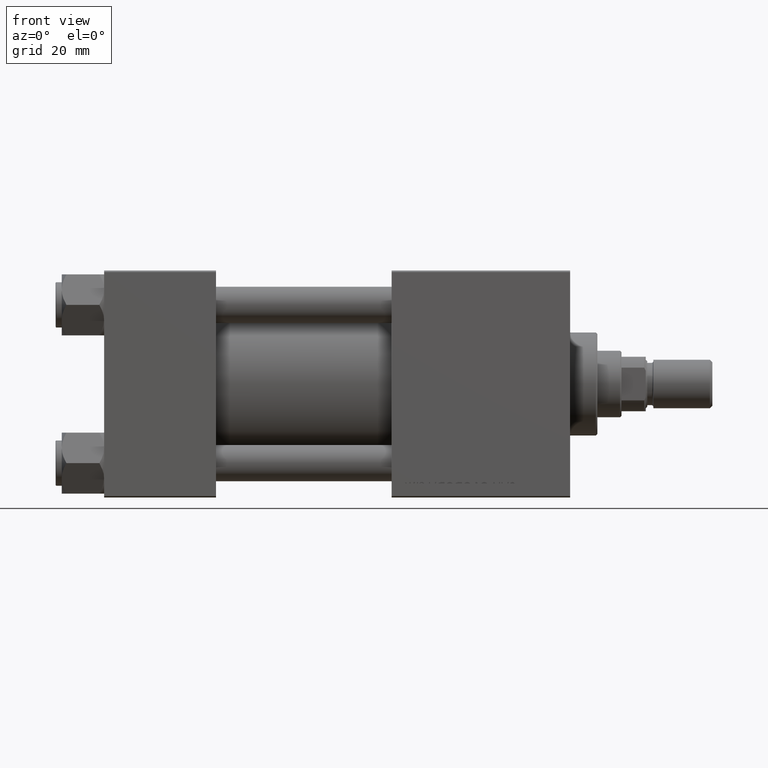
[diagram: clean part render]
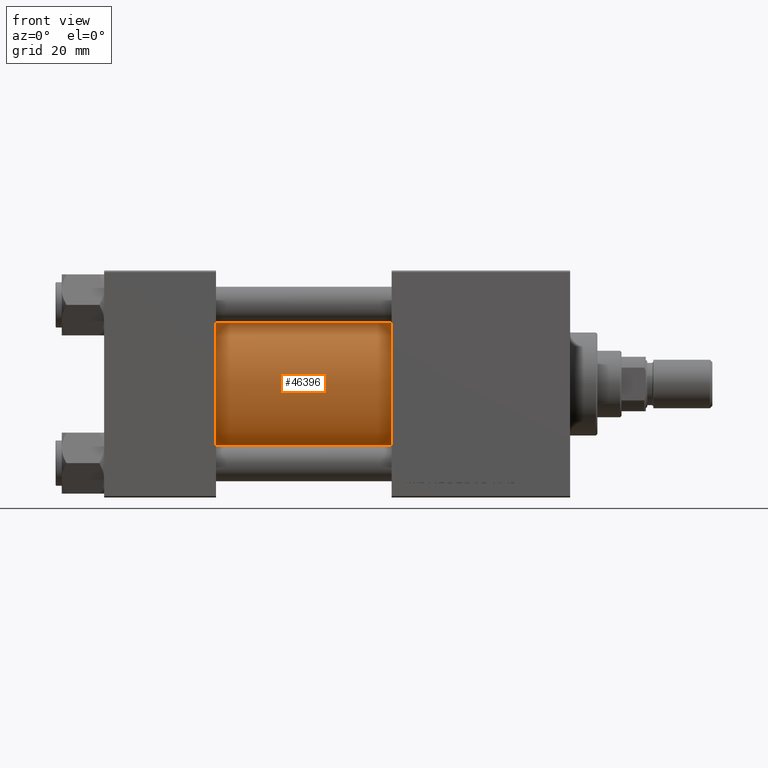
[diagram: same view with one face highlighted and labeled with its STEP entity id]
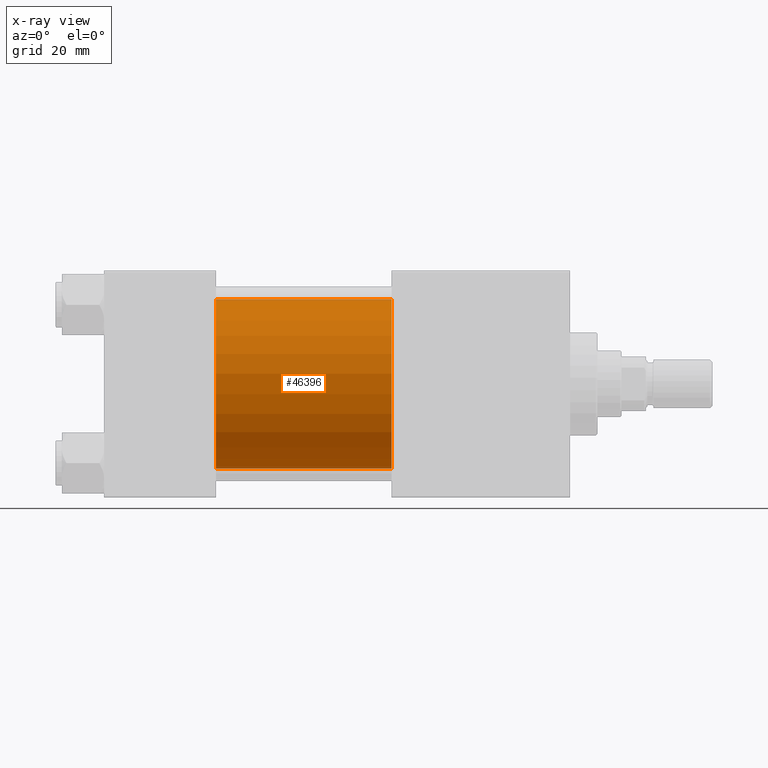
[diagram: x-ray of the same camera — body ghosted, the highlighted face saturated]
A machine part, front view. The second image highlights one B-rep face of the part: STEP entity #46396.
The next image is the same camera in x-ray: the body ghosted, the highlighted face saturated — about 2% of this face is hidden behind the body in this view.
In plain terms, the highlighted cylindrical surface (partial cylindrical patch) has radius 28 mm, axis along (-1, -0, -0).
Its self-contained STEP definition (entity closure, byte-faithful):
#290 = EDGE_CURVE ( 'NONE', #41133, #7792, #29375, .T. ) ;
#412 = ORIENTED_EDGE ( 'NONE', *, *, #34222, .F. ) ;
#2946 = AXIS2_PLACEMENT_3D ( 'NONE', #3618, #49717, #11559 ) ;
#3618 = CARTESIAN_POINT ( 'NONE',  ( 37.00000000000000000, -2.602085213965210642E-15, 0.000000000000000000 ) ) ;
#3770 = CARTESIAN_POINT ( 'NONE',  ( 37.00000000000000000, 8.269258236473776482E-16, -28.00000000000000000 ) ) ;
#7792 = VERTEX_POINT ( 'NONE', #40995 ) ;
#10001 = EDGE_CURVE ( 'NONE', #41133, #34470, #33629, .T. ) ;
#11559 = DIRECTION ( 'NONE',  ( 0.000000000000000000, 0.000000000000000000, 1.000000000000000000 ) ) ;
#11845 = VERTEX_POINT ( 'NONE', #3770 ) ;
#12321 = EDGE_LOOP ( 'NONE', ( #412, #42663, #22888, #20418 ) ) ;
#14470 = AXIS2_PLACEMENT_3D ( 'NONE', #47175, #30503, #42334 ) ;
#14909 = FACE_OUTER_BOUND ( 'NONE', #12321, .T. ) ;
#16524 = EDGE_CURVE ( 'NONE', #34470, #11845, #32325, .T. ) ;
#17251 = DIRECTION ( 'NONE',  ( 0.000000000000000000, 0.000000000000000000, -1.000000000000000000 ) ) ;
#19573 = CARTESIAN_POINT ( 'NONE',  ( 95.00000000000000000, -2.602085213965210642E-15, 28.00000000000000000 ) ) ;
#20418 = ORIENTED_EDGE ( 'NONE', *, *, #16524, .T. ) ;
#21211 = AXIS2_PLACEMENT_3D ( 'NONE', #40055, #48742, #17251 ) ;
#22888 = ORIENTED_EDGE ( 'NONE', *, *, #10001, .T. ) ;
#29375 = CIRCLE ( 'NONE', #21211, 28.00000000000000000 ) ;
#30303 = CARTESIAN_POINT ( 'NONE',  ( 95.00000000000000000, -2.602085213965210642E-15, 28.00000000000000000 ) ) ;
#30503 = DIRECTION ( 'NONE',  ( -1.000000000000000000, -0.000000000000000000, -0.000000000000000000 ) ) ;
#30548 = DIRECTION ( 'NONE',  ( -1.000000000000000000, -0.000000000000000000, -0.000000000000000000 ) ) ;
#32252 = VECTOR ( 'NONE', #30548, 1000.000000000000000 ) ;
#32325 = CIRCLE ( 'NONE', #2946, 28.00000000000000000 ) ;
#32383 = CARTESIAN_POINT ( 'NONE',  ( 37.00000000000000000, -2.602085213965210642E-15, 28.00000000000000000 ) ) ;
#33629 = LINE ( 'NONE', #30303, #32252 ) ;
#34222 = EDGE_CURVE ( 'NONE', #7792, #11845, #39913, .T. ) ;
#34470 = VERTEX_POINT ( 'NONE', #32383 ) ;
#35352 = CYLINDRICAL_SURFACE ( 'NONE', #14470, 28.00000000000000000 ) ;
#35542 = DIRECTION ( 'NONE',  ( -1.000000000000000000, -0.000000000000000000, -0.000000000000000000 ) ) ;
#39913 = LINE ( 'NONE', #43272, #42781 ) ;
#40055 = CARTESIAN_POINT ( 'NONE',  ( 95.00000000000000000, -2.602085213965210642E-15, 0.000000000000000000 ) ) ;
#40995 = CARTESIAN_POINT ( 'NONE',  ( 95.00000000000000000, 8.269258236473776482E-16, -28.00000000000000000 ) ) ;
#41133 = VERTEX_POINT ( 'NONE', #19573 ) ;
#42334 = DIRECTION ( 'NONE',  ( 0.000000000000000000, 0.000000000000000000, 1.000000000000000000 ) ) ;
#42663 = ORIENTED_EDGE ( 'NONE', *, *, #290, .F. ) ;
#42781 = VECTOR ( 'NONE', #35542, 1000.000000000000000 ) ;
#43272 = CARTESIAN_POINT ( 'NONE',  ( 95.00000000000000000, 8.269258236473776482E-16, -28.00000000000000000 ) ) ;
#46396 = ADVANCED_FACE ( 'NONE', ( #14909 ), #35352, .T. ) ;
#47175 = CARTESIAN_POINT ( 'NONE',  ( 95.00000000000000000, -2.602085213965210642E-15, 0.000000000000000000 ) ) ;
#48742 = DIRECTION ( 'NONE',  ( 1.000000000000000000, 0.000000000000000000, 0.000000000000000000 ) ) ;
#49717 = DIRECTION ( 'NONE',  ( 1.000000000000000000, -0.000000000000000000, 0.000000000000000000 ) ) ;